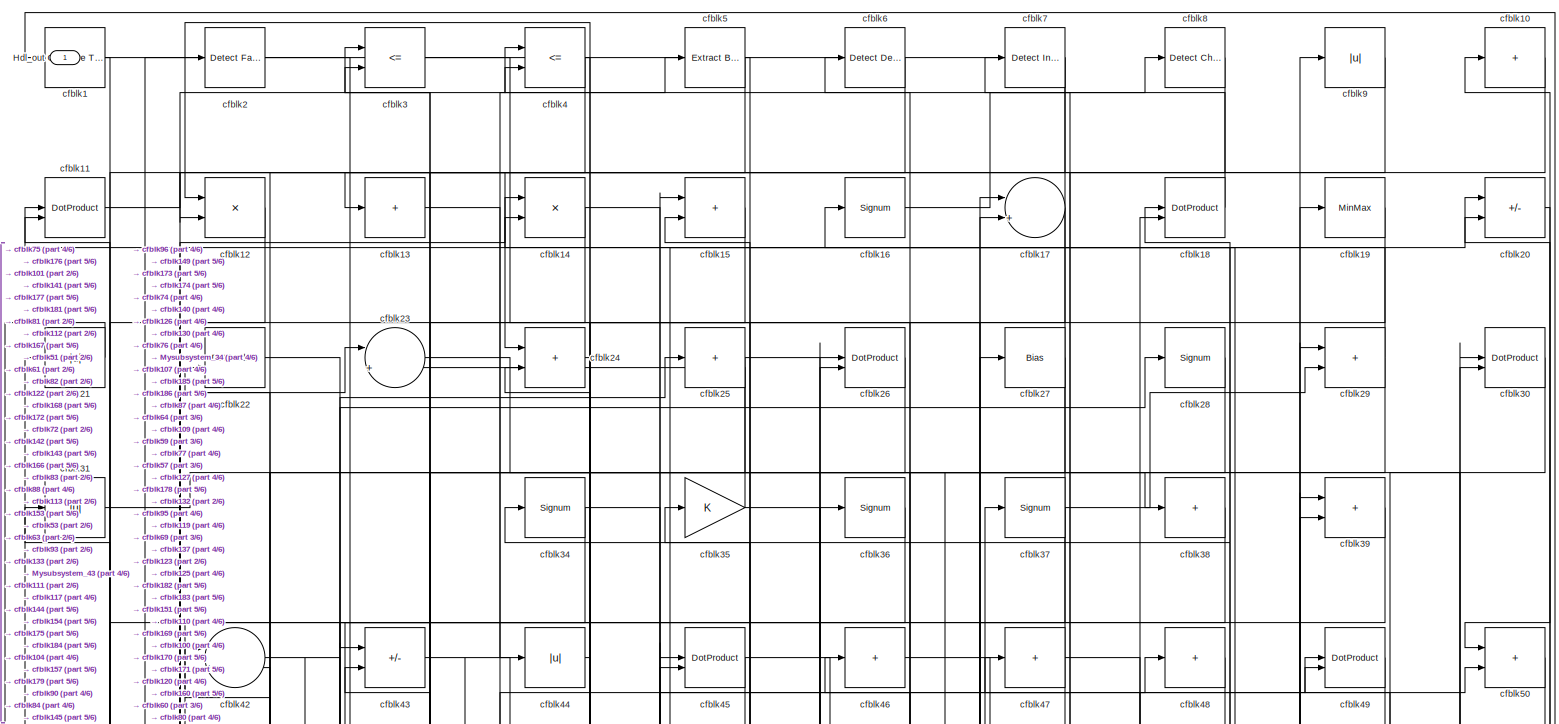
[diagram: root canvas - part 1/6, full width, top band]
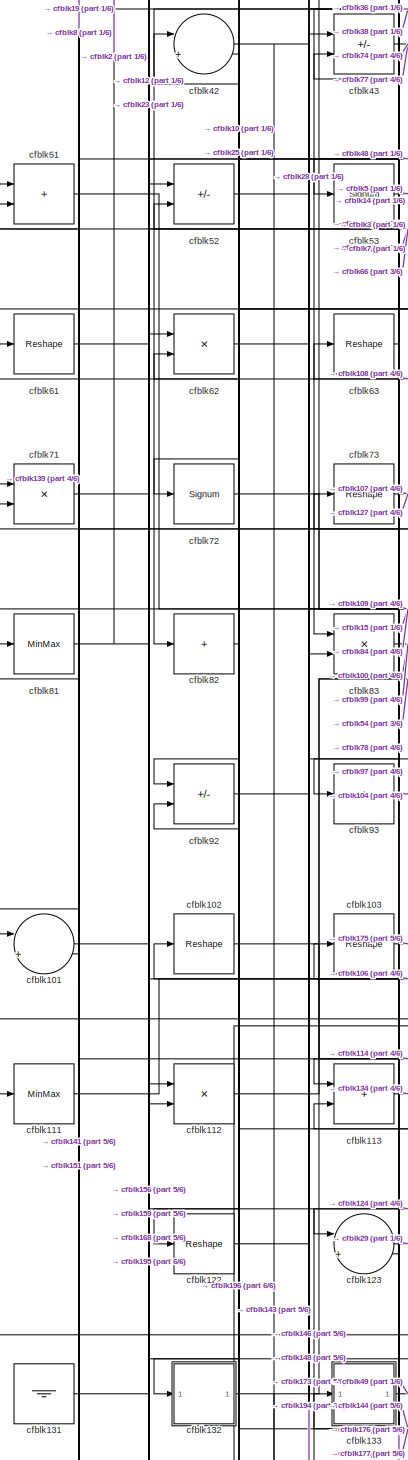
[diagram: root canvas - part 2/6, middle left region]
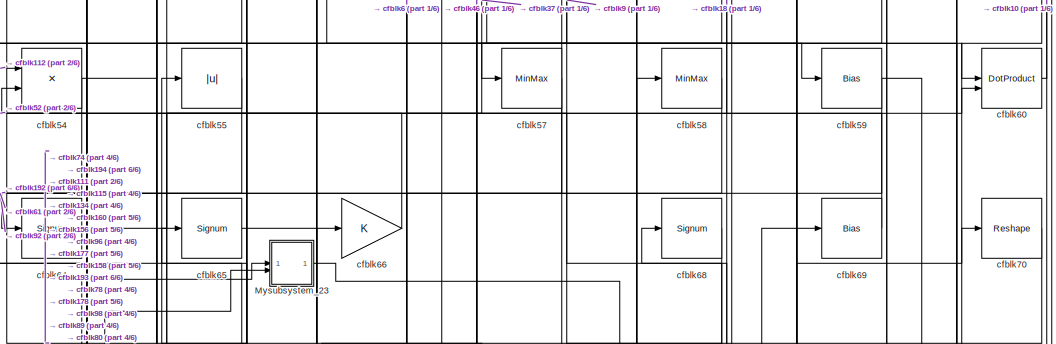
[diagram: root canvas - part 3/6, top center region]
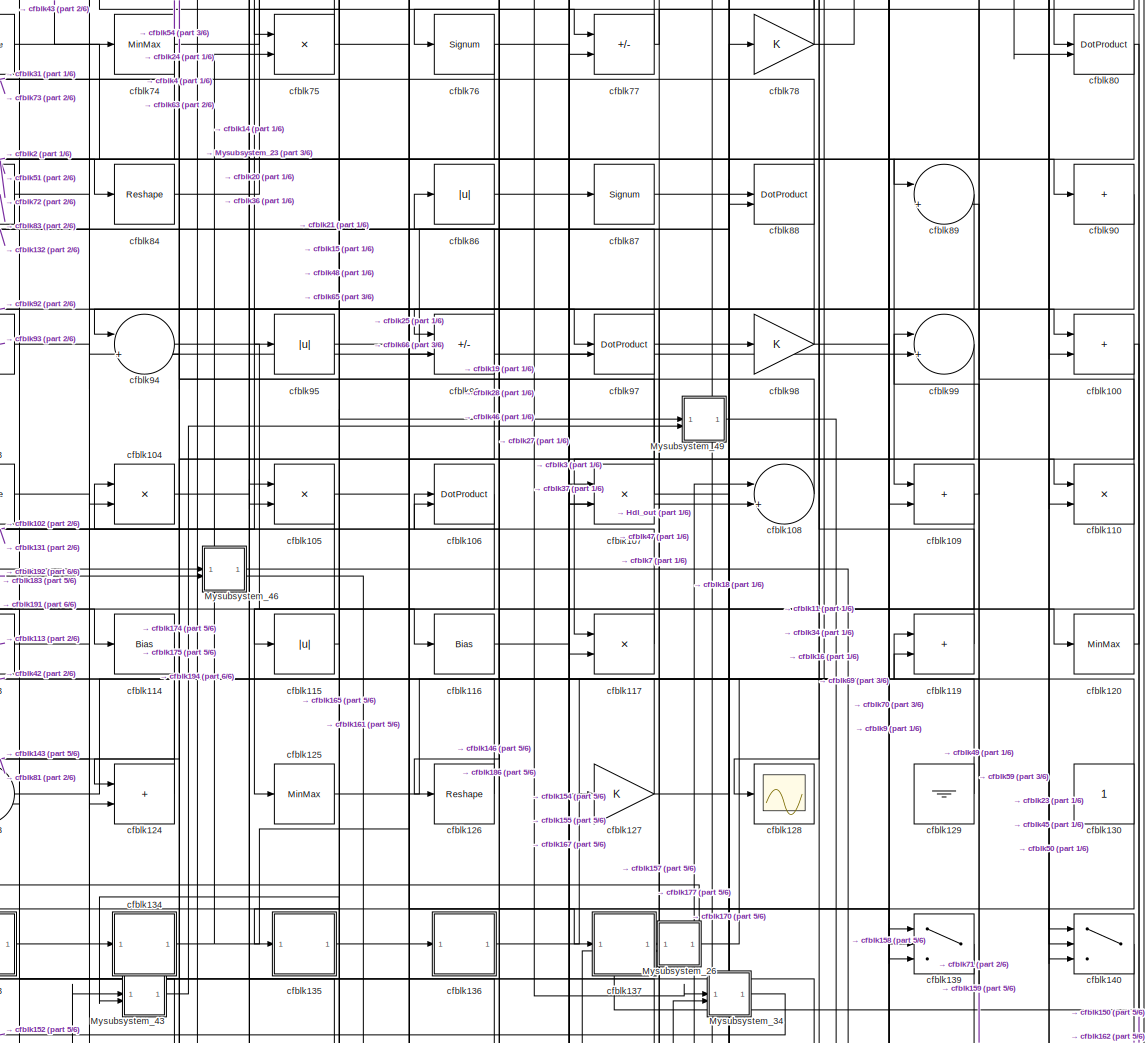
[diagram: root canvas - part 4/6, central region]
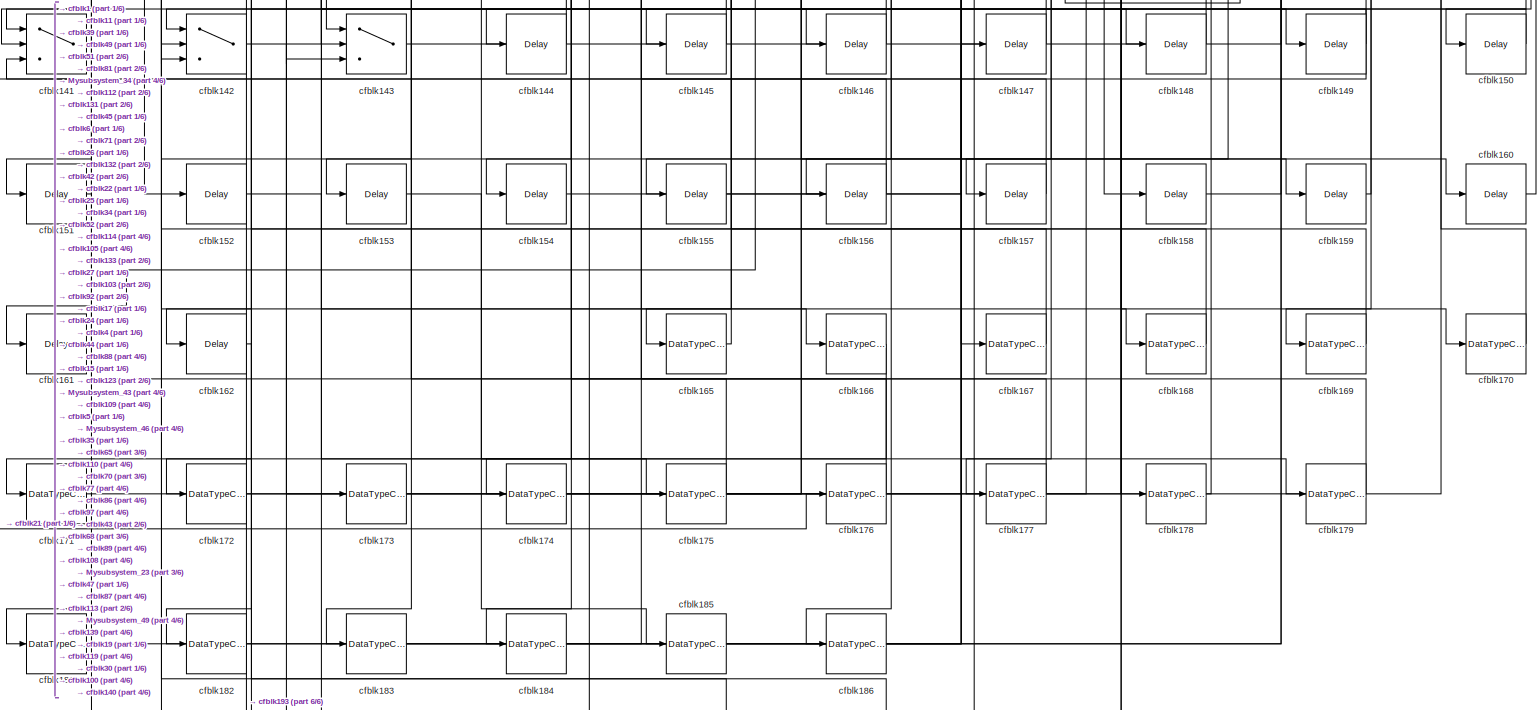
[diagram: root canvas - part 5/6, full width, bottom band]
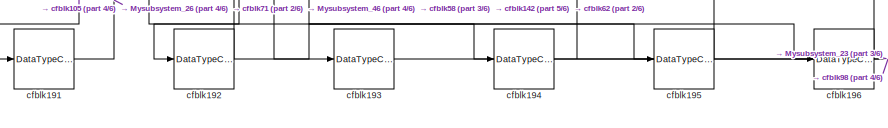
[diagram: root canvas - part 6/6, bottom left region]
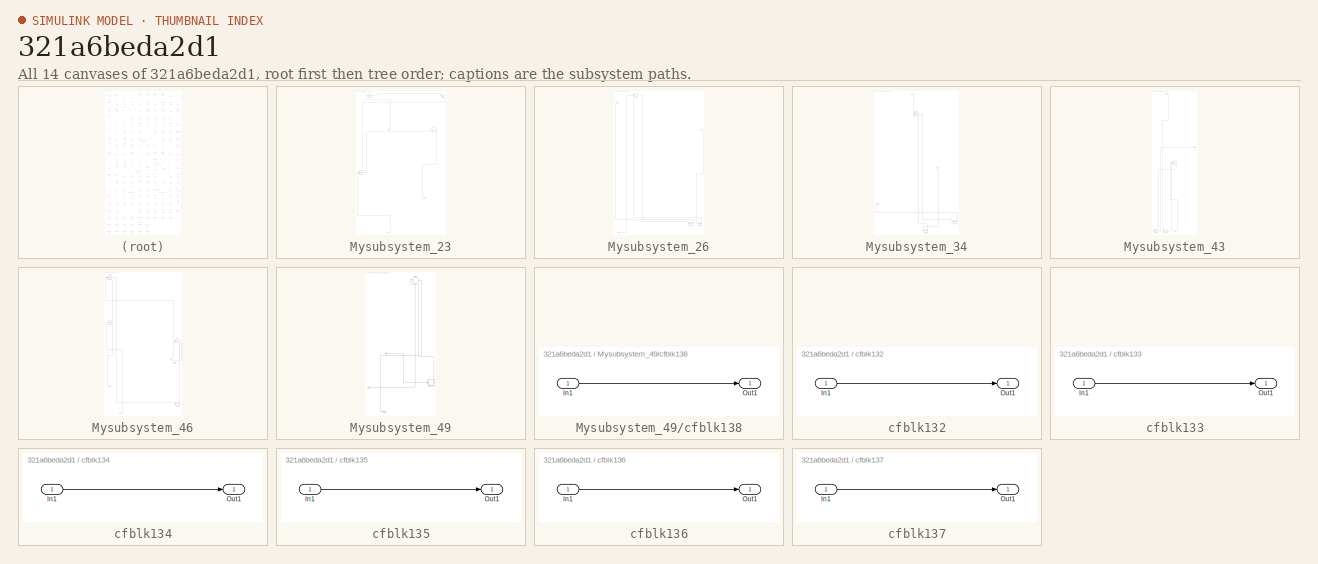
[diagram: thumbnail index - all 14 canvases of the model, root first then tree order]
MODEL slx_321a6beda2d1
KIND model
CONFIG AbsTol = auto
CONFIG EnableMultiTasking = off
CONFIG FixedStep = auto
CONFIG MaxStep = auto
CONFIG MinStep = auto
CONFIG RelTol = 1e-3
CONFIG SampleTimeConstraint = Unconstrained
CONFIG SolverName = VariableStepAuto
CONFIG StartTime = 0.0
CONFIG StopTime = 10.0
BLOCK [Outport] Hdl_out
  OutDataTypeStr = uint8
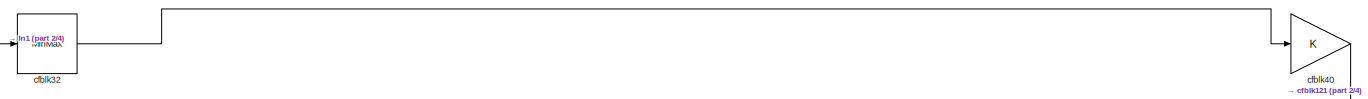
[diagram: Mysubsystem_23 - part 1/4, full width, top band]
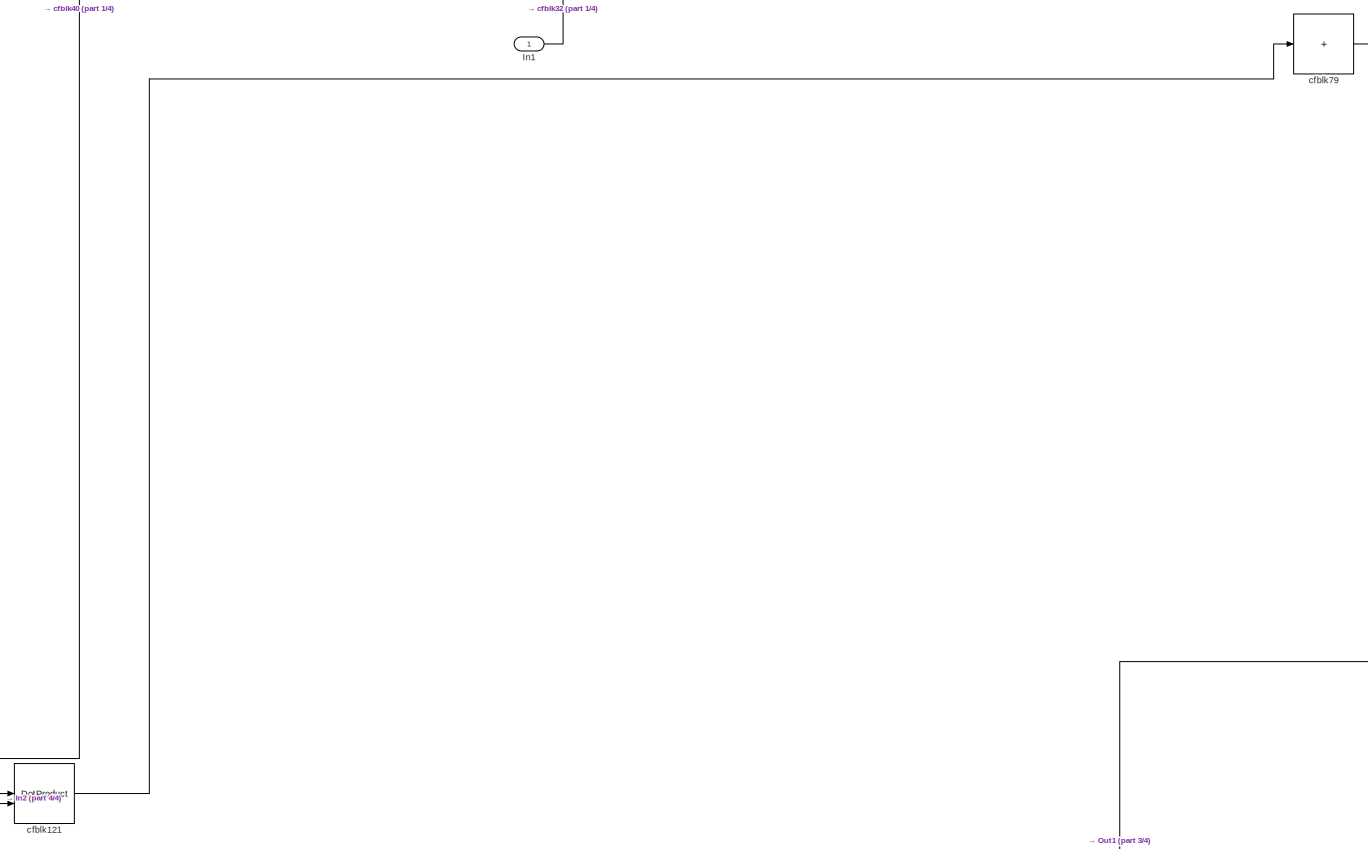
[diagram: Mysubsystem_23 - part 2/4, full width, middle band]
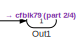
[diagram: Mysubsystem_23 - part 3/4, bottom right region]
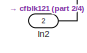
[diagram: Mysubsystem_23 - part 4/4, bottom center region]
BLOCK [SubSystem] Mysubsystem_23
  RTWFcnName = Mysubsystem_23
  RTWFcnNameOpts = User specified
  RTWFileNameOpts = Use function name
  RTWSystemCode = Reusable function
  TreatAsAtomicUnit = on
BLOCK [Inport] Mysubsystem_23/In1
BLOCK [Inport] Mysubsystem_23/In2
  Port = 2
BLOCK [Outport] Mysubsystem_23/Out1
BLOCK [DotProduct] Mysubsystem_23/cfblk121
  OutDataTypeStr = Inherit: Inherit via internal rule
BLOCK [MinMax] Mysubsystem_23/cfblk32
BLOCK [Gain] Mysubsystem_23/cfblk40
BLOCK [Sum] Mysubsystem_23/cfblk79
  IconShape = rectangular
  Inputs = +
BLOCK [SubSystem] Mysubsystem_26
  RTWFcnName = Mysubsystem_26
  RTWFcnNameOpts = User specified
  RTWFileNameOpts = Use function name
  RTWSystemCode = Reusable function
  TreatAsAtomicUnit = on
BLOCK [Inport] Mysubsystem_26/In1
BLOCK [Inport] Mysubsystem_26/In2
  Port = 2
BLOCK [Outport] Mysubsystem_26/Out1
BLOCK [DataTypeConversion] Mysubsystem_26/cfblk189
  OutDataTypeStr = uint8
  RndMeth = Floor
  SaturateOnIntegerOverflow = off
BLOCK [DataTypeConversion] Mysubsystem_26/cfblk190
  OutDataTypeStr = uint8
  RndMeth = Floor
  SaturateOnIntegerOverflow = off
BLOCK [Product] Mysubsystem_26/cfblk33
  Inputs = */
  RndMeth = Zero
  SaturateOnIntegerOverflow = on
BLOCK [SubSystem] Mysubsystem_34
  RTWFcnName = Mysubsystem_34
  RTWFcnNameOpts = User specified
  RTWFileNameOpts = Use function name
  RTWSystemCode = Reusable function
  TreatAsAtomicUnit = on
BLOCK [Inport] Mysubsystem_34/In1
BLOCK [Inport] Mysubsystem_34/In2
  Port = 2
BLOCK [Outport] Mysubsystem_34/Out1
BLOCK [DataTypeConversion] Mysubsystem_34/cfblk180
  OutDataTypeStr = uint8
  RndMeth = Floor
  SaturateOnIntegerOverflow = off
BLOCK [DataTypeConversion] Mysubsystem_34/cfblk187
  OutDataTypeStr = uint8
  RndMeth = Floor
  SaturateOnIntegerOverflow = off
BLOCK [DotProduct] Mysubsystem_34/cfblk56
  OutDataTypeStr = Inherit: Inherit via internal rule
BLOCK [SubSystem] Mysubsystem_43
  RTWFcnName = Mysubsystem_43
  RTWFcnNameOpts = User specified
  RTWFileNameOpts = Use function name
  RTWSystemCode = Reusable function
  TreatAsAtomicUnit = on
BLOCK [Inport] Mysubsystem_43/In1
BLOCK [Inport] Mysubsystem_43/In2
  Port = 2
BLOCK [Outport] Mysubsystem_43/Out1
BLOCK [DataTypeConversion] Mysubsystem_43/cfblk163
  OutDataTypeStr = uint8
  RndMeth = Floor
  SaturateOnIntegerOverflow = off
BLOCK [DataTypeConversion] Mysubsystem_43/cfblk164
  OutDataTypeStr = uint8
  RndMeth = Floor
  SaturateOnIntegerOverflow = off
BLOCK [DotProduct] Mysubsystem_43/cfblk85
  OutDataTypeStr = Inherit: Inherit via internal rule
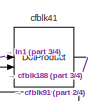
[diagram: Mysubsystem_46 - part 1/4, top left region]
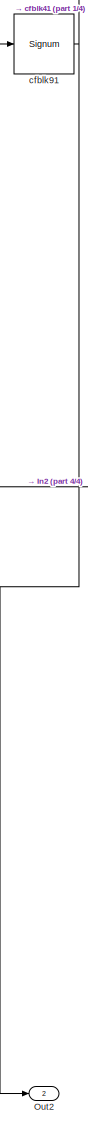
[diagram: Mysubsystem_46 - part 2/4, middle left region]
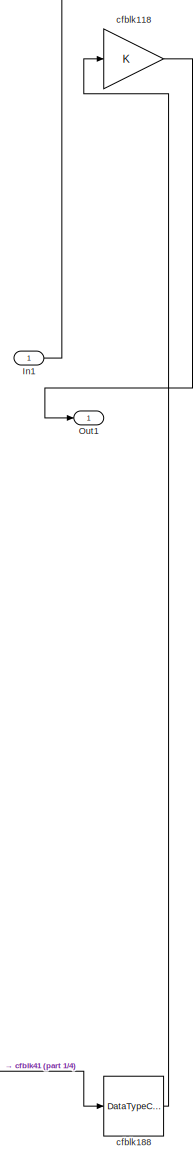
[diagram: Mysubsystem_46 - part 3/4, bottom right region]
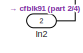
[diagram: Mysubsystem_46 - part 4/4, bottom left region]
BLOCK [SubSystem] Mysubsystem_46
  RTWFcnName = Mysubsystem_46
  RTWFcnNameOpts = User specified
  RTWFileNameOpts = Use function name
  RTWSystemCode = Reusable function
  TreatAsAtomicUnit = on
BLOCK [Inport] Mysubsystem_46/In1
BLOCK [Inport] Mysubsystem_46/In2
  Port = 2
BLOCK [Outport] Mysubsystem_46/Out1
BLOCK [Outport] Mysubsystem_46/Out2
  Port = 2
BLOCK [Gain] Mysubsystem_46/cfblk118
BLOCK [DataTypeConversion] Mysubsystem_46/cfblk188
  OutDataTypeStr = uint8
  RndMeth = Floor
  SaturateOnIntegerOverflow = off
BLOCK [DotProduct] Mysubsystem_46/cfblk41
  OutDataTypeStr = Inherit: Inherit via internal rule
BLOCK [Signum] Mysubsystem_46/cfblk91
BLOCK [SubSystem] Mysubsystem_49
  RTWFcnName = Mysubsystem_49
  RTWFcnNameOpts = User specified
  RTWFileNameOpts = Use function name
  RTWSystemCode = Reusable function
  TreatAsAtomicUnit = on
BLOCK [Inport] Mysubsystem_49/In1
BLOCK [Inport] Mysubsystem_49/In2
  Port = 2
BLOCK [Outport] Mysubsystem_49/Out1
BLOCK [SubSystem] Mysubsystem_49/cfblk138
  LibrarySourceBlock = hdlsllib/Ports &\nSubsystems/Subsystem
BLOCK [Inport] Mysubsystem_49/cfblk138/In1
BLOCK [Outport] Mysubsystem_49/cfblk138/Out1
BLOCK [Sum] Mysubsystem_49/cfblk67
  Inputs = |++
BLOCK [Reference] cfblk1  REF=hdlsllib/Logic and Bit
Operations/Compare
To Constant
  SourceBlock = hdlsllib/Logic and Bit\nOperations/Compare\nTo Constant
  SourceType = Compare To Constant
BLOCK [Sum] cfblk10
  IconShape = rectangular
  Inputs = +
  OutDataTypeStr = uint8
BLOCK [Sum] cfblk100
  IconShape = rectangular
  OutDataTypeStr = uint8
BLOCK [Sum] cfblk101
  Inputs = |++
  OutDataTypeStr = uint8
BLOCK [Reshape] cfblk102
BLOCK [Reshape] cfblk103
BLOCK [Product] cfblk104
  Inputs = */
  OutDataTypeStr = uint8
  RndMeth = Zero
  SaturateOnIntegerOverflow = on
BLOCK [Product] cfblk105
  Inputs = */
  OutDataTypeStr = uint8
  RndMeth = Zero
  SaturateOnIntegerOverflow = on
BLOCK [DotProduct] cfblk106
  OutDataTypeStr = uint8
BLOCK [Product] cfblk107
  Inputs = */
  OutDataTypeStr = uint8
  RndMeth = Zero
  SaturateOnIntegerOverflow = on
BLOCK [Sum] cfblk108
  Inputs = |++
  OutDataTypeStr = uint8
BLOCK [Sum] cfblk109
  IconShape = rectangular
  OutDataTypeStr = uint8
BLOCK [DotProduct] cfblk11
  OutDataTypeStr = uint8
BLOCK [Product] cfblk110
  Inputs = */
  OutDataTypeStr = uint8
  RndMeth = Zero
  SaturateOnIntegerOverflow = on
BLOCK [MinMax] cfblk111
  OutDataTypeStr = uint8
BLOCK [Product] cfblk112
  Inputs = */
  OutDataTypeStr = uint8
  RndMeth = Zero
  SaturateOnIntegerOverflow = on
BLOCK [Sum] cfblk113
  IconShape = rectangular
  OutDataTypeStr = uint8
BLOCK [Bias] cfblk114
  Bias = 0.0
  SaturateOnIntegerOverflow = off
BLOCK [Abs] cfblk115
  OutDataTypeStr = uint8
  SaturateOnIntegerOverflow = off
BLOCK [Bias] cfblk116
  Bias = 0.0
  SaturateOnIntegerOverflow = off
BLOCK [Product] cfblk117
  Inputs = */
  OutDataTypeStr = uint8
  RndMeth = Zero
  SaturateOnIntegerOverflow = on
BLOCK [Sum] cfblk119
  IconShape = rectangular
  OutDataTypeStr = uint8
BLOCK [Product] cfblk12
  Inputs = */
  OutDataTypeStr = uint8
  RndMeth = Zero
  SaturateOnIntegerOverflow = on
BLOCK [MinMax] cfblk120
  OutDataTypeStr = uint8
BLOCK [Reshape] cfblk122
BLOCK [Sum] cfblk123
  Inputs = |++
  OutDataTypeStr = uint8
BLOCK [Sum] cfblk124
  IconShape = rectangular
  OutDataTypeStr = uint8
BLOCK [MinMax] cfblk125
  OutDataTypeStr = uint8
BLOCK [Reshape] cfblk126
BLOCK [Gain] cfblk127
  OutDataTypeStr = uint8
BLOCK [Scope] cfblk128
  Floating = off
  NumInputPorts = 1
  ScopeSpecificationString = Simulink.scopes.TimeScopeBlockCfg('CurrentConfiguration', extmgr.ConfigurationSet(extmgr.Configuration('Core','General UI',true),extmgr.Configuration('Core','Source UI',true),extmgr.Configuration('Sources','WiredSimulink',true,'DataLoggingVariableName','ScopeData2','DataLoggingSaveFormat','Array','DataLoggingLimitDataPoints',true,'DataLoggingDecimation','1'),extmgr.Configuration('Visuals','Time Do...<+868ch>
BLOCK [Ground] cfblk129
BLOCK [Sum] cfblk13
  IconShape = rectangular
  Inputs = +
  OutDataTypeStr = uint8
BLOCK [Constant] cfblk130
  OutDataTypeStr = uint8
  SampleTime = -1
BLOCK [Ground] cfblk131
BLOCK [SubSystem] cfblk132
  LibrarySourceBlock = hdlsllib/Ports &\nSubsystems/Subsystem
BLOCK [Inport] cfblk132/In1
BLOCK [Outport] cfblk132/Out1
BLOCK [SubSystem] cfblk133
  LibrarySourceBlock = hdlsllib/Ports &\nSubsystems/Subsystem
BLOCK [Inport] cfblk133/In1
BLOCK [Outport] cfblk133/Out1
BLOCK [SubSystem] cfblk134
  LibrarySourceBlock = hdlsllib/Ports &\nSubsystems/Subsystem
BLOCK [Inport] cfblk134/In1
BLOCK [Outport] cfblk134/Out1
BLOCK [SubSystem] cfblk135
  LibrarySourceBlock = hdlsllib/Ports &\nSubsystems/Subsystem
BLOCK [Inport] cfblk135/In1
BLOCK [Outport] cfblk135/Out1
BLOCK [SubSystem] cfblk136
  LibrarySourceBlock = hdlsllib/Ports &\nSubsystems/Subsystem
BLOCK [Inport] cfblk136/In1
BLOCK [Outport] cfblk136/Out1
BLOCK [SubSystem] cfblk137
  LibrarySourceBlock = hdlsllib/Ports &\nSubsystems/Subsystem
BLOCK [Inport] cfblk137/In1
BLOCK [Outport] cfblk137/Out1
BLOCK [Switch] cfblk139
  InputSameDT = off
  OutDataTypeStr = uint8
  SaturateOnIntegerOverflow = off
BLOCK [Product] cfblk14
  Inputs = */
  OutDataTypeStr = uint8
  RndMeth = Zero
  SaturateOnIntegerOverflow = on
BLOCK [Switch] cfblk140
  InputSameDT = off
  OutDataTypeStr = uint8
  SaturateOnIntegerOverflow = off
BLOCK [Switch] cfblk141
  InputSameDT = off
  OutDataTypeStr = uint8
  SaturateOnIntegerOverflow = off
BLOCK [Switch] cfblk142
  InputSameDT = off
  OutDataTypeStr = uint8
  SaturateOnIntegerOverflow = off
BLOCK [Switch] cfblk143
  InputSameDT = off
  OutDataTypeStr = uint8
  SaturateOnIntegerOverflow = off
BLOCK [Delay] cfblk144
  InputPortMap = u0
  SampleTime = 1
BLOCK [Delay] cfblk145
  InputPortMap = u0
  SampleTime = 1
BLOCK [Delay] cfblk146
  InputPortMap = u0
  SampleTime = 1
BLOCK [Delay] cfblk147
  InputPortMap = u0
  SampleTime = 1
BLOCK [Delay] cfblk148
  InputPortMap = u0
  SampleTime = 1
BLOCK [Delay] cfblk149
  InputPortMap = u0
  SampleTime = 1
BLOCK [Sum] cfblk15
  IconShape = rectangular
  OutDataTypeStr = uint8
BLOCK [Delay] cfblk150
  InputPortMap = u0
  SampleTime = 1
BLOCK [Delay] cfblk151
  InputPortMap = u0
  SampleTime = 1
BLOCK [Delay] cfblk152
  InputPortMap = u0
  SampleTime = 1
BLOCK [Delay] cfblk153
  InputPortMap = u0
  SampleTime = 1
BLOCK [Delay] cfblk154
  InputPortMap = u0
  SampleTime = 1
BLOCK [Delay] cfblk155
  InputPortMap = u0
  SampleTime = 1
BLOCK [Delay] cfblk156
  InputPortMap = u0
  SampleTime = 1
BLOCK [Delay] cfblk157
  InputPortMap = u0
  SampleTime = 1
BLOCK [Delay] cfblk158
  InputPortMap = u0
  SampleTime = 1
BLOCK [Delay] cfblk159
  InputPortMap = u0
  SampleTime = 1
BLOCK [Signum] cfblk16
BLOCK [Delay] cfblk160
  InputPortMap = u0
  SampleTime = 1
BLOCK [Delay] cfblk161
  InputPortMap = u0
  SampleTime = 1
BLOCK [Delay] cfblk162
  InputPortMap = u0
  SampleTime = 1
BLOCK [DataTypeConversion] cfblk165
  OutDataTypeStr = uint8
  RndMeth = Floor
  SaturateOnIntegerOverflow = off
BLOCK [DataTypeConversion] cfblk166
  OutDataTypeStr = uint8
  RndMeth = Floor
  SaturateOnIntegerOverflow = off
BLOCK [DataTypeConversion] cfblk167
  OutDataTypeStr = uint8
  RndMeth = Floor
  SaturateOnIntegerOverflow = off
BLOCK [DataTypeConversion] cfblk168
  OutDataTypeStr = uint8
  RndMeth = Floor
  SaturateOnIntegerOverflow = off
BLOCK [DataTypeConversion] cfblk169
  OutDataTypeStr = uint8
  RndMeth = Floor
  SaturateOnIntegerOverflow = off
BLOCK [Sum] cfblk17
  Inputs = |++
  OutDataTypeStr = uint8
BLOCK [DataTypeConversion] cfblk170
  OutDataTypeStr = uint8
  RndMeth = Floor
  SaturateOnIntegerOverflow = off
BLOCK [DataTypeConversion] cfblk171
  OutDataTypeStr = uint8
  RndMeth = Floor
  SaturateOnIntegerOverflow = off
BLOCK [DataTypeConversion] cfblk172
  OutDataTypeStr = uint8
  RndMeth = Floor
  SaturateOnIntegerOverflow = off
BLOCK [DataTypeConversion] cfblk173
  OutDataTypeStr = uint8
  RndMeth = Floor
  SaturateOnIntegerOverflow = off
BLOCK [DataTypeConversion] cfblk174
  OutDataTypeStr = uint8
  RndMeth = Floor
  SaturateOnIntegerOverflow = off
BLOCK [DataTypeConversion] cfblk175
  OutDataTypeStr = uint8
  RndMeth = Floor
  SaturateOnIntegerOverflow = off
BLOCK [DataTypeConversion] cfblk176
  OutDataTypeStr = uint8
  RndMeth = Floor
  SaturateOnIntegerOverflow = off
BLOCK [DataTypeConversion] cfblk177
  OutDataTypeStr = uint8
  RndMeth = Floor
  SaturateOnIntegerOverflow = off
BLOCK [DataTypeConversion] cfblk178
  OutDataTypeStr = uint8
  RndMeth = Floor
  SaturateOnIntegerOverflow = off
BLOCK [DataTypeConversion] cfblk179
  OutDataTypeStr = uint8
  RndMeth = Floor
  SaturateOnIntegerOverflow = off
BLOCK [DotProduct] cfblk18
  OutDataTypeStr = uint8
BLOCK [DataTypeConversion] cfblk181
  OutDataTypeStr = uint8
  RndMeth = Floor
  SaturateOnIntegerOverflow = off
BLOCK [DataTypeConversion] cfblk182
  OutDataTypeStr = uint8
  RndMeth = Floor
  SaturateOnIntegerOverflow = off
BLOCK [DataTypeConversion] cfblk183
  OutDataTypeStr = uint8
  RndMeth = Floor
  SaturateOnIntegerOverflow = off
BLOCK [DataTypeConversion] cfblk184
  OutDataTypeStr = uint8
  RndMeth = Floor
  SaturateOnIntegerOverflow = off
BLOCK [DataTypeConversion] cfblk185
  OutDataTypeStr = uint8
  RndMeth = Floor
  SaturateOnIntegerOverflow = off
BLOCK [DataTypeConversion] cfblk186
  OutDataTypeStr = uint8
  RndMeth = Floor
  SaturateOnIntegerOverflow = off
BLOCK [MinMax] cfblk19
  OutDataTypeStr = uint8
BLOCK [DataTypeConversion] cfblk191
  OutDataTypeStr = uint8
  RndMeth = Floor
  SaturateOnIntegerOverflow = off
BLOCK [DataTypeConversion] cfblk192
  OutDataTypeStr = uint8
  RndMeth = Floor
  SaturateOnIntegerOverflow = off
BLOCK [DataTypeConversion] cfblk193
  OutDataTypeStr = uint8
  RndMeth = Floor
  SaturateOnIntegerOverflow = off
BLOCK [DataTypeConversion] cfblk194
  OutDataTypeStr = uint8
  RndMeth = Floor
  SaturateOnIntegerOverflow = off
BLOCK [DataTypeConversion] cfblk195
  OutDataTypeStr = uint8
  RndMeth = Floor
  SaturateOnIntegerOverflow = off
BLOCK [DataTypeConversion] cfblk196
  OutDataTypeStr = uint8
  RndMeth = Floor
  SaturateOnIntegerOverflow = off
BLOCK [Reference] cfblk2  REF=hdlsllib/Logic and Bit
Operations/Detect Fall
Nonpositive
  SourceBlock = hdlsllib/Logic and Bit\nOperations/Detect Fall\nNonpositive
  SourceType = Detect Fall Nonpositive
BLOCK [Sum] cfblk20
  IconShape = rectangular
  Inputs = +-
  OutDataTypeStr = uint8
BLOCK [Abs] cfblk21
  OutDataTypeStr = uint8
  SaturateOnIntegerOverflow = off
BLOCK [DotProduct] cfblk22
  OutDataTypeStr = uint8
BLOCK [Sum] cfblk23
  Inputs = |++
  OutDataTypeStr = uint8
BLOCK [Sum] cfblk24
  IconShape = rectangular
  OutDataTypeStr = uint8
BLOCK [Sum] cfblk25
  IconShape = rectangular
  Inputs = +
  OutDataTypeStr = uint8
BLOCK [DotProduct] cfblk26
  OutDataTypeStr = uint8
BLOCK [Bias] cfblk27
  Bias = 0.0
  SaturateOnIntegerOverflow = off
BLOCK [Signum] cfblk28
BLOCK [Sum] cfblk29
  IconShape = rectangular
  OutDataTypeStr = uint8
BLOCK [RelationalOperator] cfblk3
  InputSameDT = off
  Operator = <=
  OutDataTypeStr = boolean
BLOCK [DotProduct] cfblk30
  OutDataTypeStr = uint8
BLOCK [Abs] cfblk31
  OutDataTypeStr = uint8
  SaturateOnIntegerOverflow = off
BLOCK [Signum] cfblk34
BLOCK [Gain] cfblk35
  OutDataTypeStr = uint8
BLOCK [Signum] cfblk36
BLOCK [Signum] cfblk37
BLOCK [Sum] cfblk38
  IconShape = rectangular
  Inputs = +
  OutDataTypeStr = uint8
BLOCK [Sum] cfblk39
  IconShape = rectangular
  OutDataTypeStr = uint8
BLOCK [RelationalOperator] cfblk4
  InputSameDT = off
  Operator = <=
  OutDataTypeStr = boolean
BLOCK [Sum] cfblk42
  Inputs = |++
  OutDataTypeStr = uint8
BLOCK [Sum] cfblk43
  IconShape = rectangular
  Inputs = +-
  OutDataTypeStr = uint8
BLOCK [Abs] cfblk44
  OutDataTypeStr = uint8
  SaturateOnIntegerOverflow = off
BLOCK [DotProduct] cfblk45
  OutDataTypeStr = uint8
BLOCK [Sum] cfblk46
  IconShape = rectangular
  Inputs = +
  OutDataTypeStr = uint8
BLOCK [Sum] cfblk47
  IconShape = rectangular
  Inputs = +
  OutDataTypeStr = uint8
BLOCK [Sum] cfblk48
  IconShape = rectangular
  Inputs = +
  OutDataTypeStr = uint8
BLOCK [DotProduct] cfblk49
  OutDataTypeStr = uint8
BLOCK [Reference] cfblk5  REF=simulink/Logic and Bit
Operations/Extract Bits
  LibrarySourceBlock = hdlsllib/Logic and Bit\nOperations/Extract Bits
  SourceBlock = simulink/Logic and Bit\nOperations/Extract Bits
  SourceType = Extract Bits
BLOCK [Sum] cfblk50
  IconShape = rectangular
  OutDataTypeStr = uint8
BLOCK [Sum] cfblk51
  IconShape = rectangular
  OutDataTypeStr = uint8
BLOCK [Sum] cfblk52
  IconShape = rectangular
  Inputs = +-
  OutDataTypeStr = uint8
BLOCK [Signum] cfblk53
BLOCK [Product] cfblk54
  Inputs = */
  OutDataTypeStr = uint8
  RndMeth = Zero
  SaturateOnIntegerOverflow = on
BLOCK [Abs] cfblk55
  OutDataTypeStr = uint8
  SaturateOnIntegerOverflow = off
BLOCK [MinMax] cfblk57
  OutDataTypeStr = uint8
BLOCK [MinMax] cfblk58
  OutDataTypeStr = uint8
BLOCK [Bias] cfblk59
  Bias = 0.0
  SaturateOnIntegerOverflow = off
BLOCK [Reference] cfblk6  REF=simulink/Logic and Bit
Operations/Detect
Decrease
  LibrarySourceBlock = hdlsllib/Logic and Bit\nOperations/Detect\nDecrease
  SourceBlock = simulink/Logic and Bit\nOperations/Detect\nDecrease
  SourceType = Detect Decrease
BLOCK [DotProduct] cfblk60
  OutDataTypeStr = uint8
BLOCK [Reshape] cfblk61
BLOCK [Product] cfblk62
  Inputs = */
  OutDataTypeStr = uint8
  RndMeth = Zero
  SaturateOnIntegerOverflow = on
BLOCK [Reshape] cfblk63
BLOCK [Signum] cfblk64
BLOCK [Signum] cfblk65
BLOCK [Gain] cfblk66
  OutDataTypeStr = uint8
BLOCK [Signum] cfblk68
BLOCK [Bias] cfblk69
  Bias = 0.0
  SaturateOnIntegerOverflow = off
BLOCK [Reference] cfblk7  REF=simulink/Logic and Bit
Operations/Detect
Increase
  LibrarySourceBlock = hdlsllib/Logic and Bit\nOperations/Detect\nIncrease
  SourceBlock = simulink/Logic and Bit\nOperations/Detect\nIncrease
  SourceType = Detect Increase
BLOCK [Reshape] cfblk70
BLOCK [Product] cfblk71
  Inputs = */
  OutDataTypeStr = uint8
  RndMeth = Zero
  SaturateOnIntegerOverflow = on
BLOCK [Signum] cfblk72
BLOCK [Reshape] cfblk73
BLOCK [MinMax] cfblk74
  OutDataTypeStr = uint8
BLOCK [Product] cfblk75
  Inputs = */
  OutDataTypeStr = uint8
  RndMeth = Zero
  SaturateOnIntegerOverflow = on
BLOCK [Signum] cfblk76
BLOCK [Sum] cfblk77
  IconShape = rectangular
  Inputs = +-
  OutDataTypeStr = uint8
BLOCK [Gain] cfblk78
  OutDataTypeStr = uint8
BLOCK [Reference] cfblk8  REF=simulink/Logic and Bit
Operations/Detect
Change
  LibrarySourceBlock = hdlsllib/Logic and Bit\nOperations/Detect\nChange
  SourceBlock = simulink/Logic and Bit\nOperations/Detect\nChange
  SourceType = Detect Change
BLOCK [DotProduct] cfblk80
  OutDataTypeStr = uint8
BLOCK [MinMax] cfblk81
  OutDataTypeStr = uint8
BLOCK [Sum] cfblk82
  IconShape = rectangular
  Inputs = +
  OutDataTypeStr = uint8
BLOCK [Product] cfblk83
  Inputs = */
  OutDataTypeStr = uint8
  RndMeth = Zero
  SaturateOnIntegerOverflow = on
BLOCK [Reshape] cfblk84
BLOCK [Abs] cfblk86
  OutDataTypeStr = uint8
  SaturateOnIntegerOverflow = off
BLOCK [Signum] cfblk87
BLOCK [DotProduct] cfblk88
  OutDataTypeStr = uint8
BLOCK [Sum] cfblk89
  Inputs = |++
  OutDataTypeStr = uint8
BLOCK [Abs] cfblk9
  OutDataTypeStr = uint8
  SaturateOnIntegerOverflow = off
BLOCK [Sum] cfblk90
  IconShape = rectangular
  Inputs = +
  OutDataTypeStr = uint8
BLOCK [Sum] cfblk92
  IconShape = rectangular
  Inputs = +-
  OutDataTypeStr = uint8
BLOCK [Sum] cfblk93
  IconShape = rectangular
  Inputs = +
  OutDataTypeStr = uint8
BLOCK [Sum] cfblk94
  Inputs = |++
  OutDataTypeStr = uint8
BLOCK [Abs] cfblk95
  OutDataTypeStr = uint8
  SaturateOnIntegerOverflow = off
BLOCK [Sum] cfblk96
  IconShape = rectangular
  Inputs = +-
  OutDataTypeStr = uint8
BLOCK [DotProduct] cfblk97
  OutDataTypeStr = uint8
BLOCK [Gain] cfblk98
  OutDataTypeStr = uint8
BLOCK [Sum] cfblk99
  Inputs = |++
  OutDataTypeStr = uint8
LINE Mysubsystem_23/In1:1 -> Mysubsystem_23/cfblk32:1
LINE Mysubsystem_23/In2:1 -> Mysubsystem_23/cfblk121:2
LINE Mysubsystem_23/cfblk121:1 -> Mysubsystem_23/cfblk79:1
LINE Mysubsystem_23/cfblk32:1 -> Mysubsystem_23/cfblk40:1
LINE Mysubsystem_23/cfblk40:1 -> Mysubsystem_23/cfblk121:1
LINE Mysubsystem_23/cfblk79:1 -> Mysubsystem_23/Out1:1
LINE Mysubsystem_23:1 -> cfblk158:1
LINE Mysubsystem_26/In1:1 -> Mysubsystem_26/cfblk190:1
LINE Mysubsystem_26/In2:1 -> Mysubsystem_26/cfblk33:2
LINE Mysubsystem_26/cfblk189:1 -> Mysubsystem_26/Out1:1
LINE Mysubsystem_26/cfblk190:1 -> Mysubsystem_26/cfblk33:1
LINE Mysubsystem_26/cfblk33:1 -> Mysubsystem_26/cfblk189:1
LINE Mysubsystem_26:1 -> Mysubsystem_46:1
LINE Mysubsystem_34/In1:1 -> Mysubsystem_34/cfblk56:1
LINE Mysubsystem_34/In2:1 -> Mysubsystem_34/cfblk187:1
LINE Mysubsystem_34/cfblk180:1 -> Mysubsystem_34/Out1:1
LINE Mysubsystem_34/cfblk187:1 -> Mysubsystem_34/cfblk56:2
LINE Mysubsystem_34/cfblk56:1 -> Mysubsystem_34/cfblk180:1
LINE Mysubsystem_34:1 -> cfblk152:1
LINE Mysubsystem_43/In1:1 -> Mysubsystem_43/cfblk164:1
LINE Mysubsystem_43/In2:1 -> Mysubsystem_43/cfblk85:2
LINE Mysubsystem_43/cfblk163:1 -> Mysubsystem_43/Out1:1
LINE Mysubsystem_43/cfblk164:1 -> Mysubsystem_43/cfblk85:1
LINE Mysubsystem_43/cfblk85:1 -> Mysubsystem_43/cfblk163:1
LINE Mysubsystem_43:1 -> Mysubsystem_49:2
LINE Mysubsystem_46/In1:1 -> Mysubsystem_46/cfblk41:1
LINE Mysubsystem_46/In2:1 -> Mysubsystem_46/cfblk91:1
LINE Mysubsystem_46/cfblk118:1 -> Mysubsystem_46/Out1:1
LINE Mysubsystem_46/cfblk188:1 -> Mysubsystem_46/cfblk118:1
LINE Mysubsystem_46/cfblk41:1 -> Mysubsystem_46/cfblk188:1
NET Mysubsystem_46/cfblk91:1 -> Mysubsystem_46/Out2:1, Mysubsystem_46/cfblk41:2
LINE Mysubsystem_46:1 -> Mysubsystem_34:2
LINE Mysubsystem_46:2 -> cfblk161:1
LINE Mysubsystem_49/In1:1 -> Mysubsystem_49/cfblk138:1
LINE Mysubsystem_49/In2:1 -> Mysubsystem_49/cfblk67:2
LINE Mysubsystem_49/cfblk138/In1:1 -> Mysubsystem_49/cfblk138/Out1:1
LINE Mysubsystem_49/cfblk138:1 -> Mysubsystem_49/cfblk67:1
LINE Mysubsystem_49/cfblk67:1 -> Mysubsystem_49/Out1:1
LINE Mysubsystem_49:1 -> cfblk155:1
NET cfblk100:1 -> cfblk110:2, cfblk150:1
LINE cfblk101:1 -> cfblk52:1
LINE cfblk102:1 -> cfblk114:1
LINE cfblk103:1 -> cfblk175:1
LINE cfblk104:1 -> cfblk48:1
NET cfblk105:1 -> cfblk110:1, cfblk183:1, cfblk191:1
LINE cfblk106:1 -> cfblk125:1
NET cfblk107:1 -> cfblk140:2, cfblk71:2
LINE cfblk108:1 -> cfblk63:1
NET cfblk109:1 -> cfblk135:1, cfblk165:1, cfblk89:2
LINE cfblk10:1 -> cfblk72:1
NET cfblk110:1 -> cfblk186:1, cfblk49:2
NET cfblk111:1 -> cfblk55:1, cfblk60:2
LINE cfblk112:1 -> cfblk54:1
LINE cfblk113:1 -> cfblk134:1
LINE cfblk114:1 -> cfblk143:1
NET cfblk115:1 -> Mysubsystem_49:1, cfblk65:1
LINE cfblk116:1 -> cfblk108:2
LINE cfblk117:1 -> cfblk24:2
NET cfblk119:1 -> cfblk11:1, cfblk34:1
LINE cfblk11:1 -> cfblk4:1
LINE cfblk120:1 -> cfblk20:2
NET cfblk122:1 -> cfblk28:1, cfblk43:1
LINE cfblk123:1 -> cfblk29:1
LINE cfblk124:1 -> cfblk42:1
LINE cfblk125:1 -> cfblk9:1
LINE cfblk126:1 -> cfblk3:2
NET cfblk127:1 -> cfblk50:2, cfblk86:1
LINE cfblk129:1 -> cfblk104:1
LINE cfblk12:1 -> cfblk112:2
NET cfblk130:1 -> cfblk106:2, cfblk140:3, cfblk46:1, cfblk99:1
NET cfblk131:1 -> cfblk106:1, cfblk168:1
LINE cfblk132/In1:1 -> cfblk132/Out1:1
NET cfblk132:1 -> cfblk143:3, cfblk78:1
LINE cfblk133/In1:1 -> cfblk133/Out1:1
LINE cfblk133:1 -> cfblk49:1
LINE cfblk134/In1:1 -> cfblk134/Out1:1
NET cfblk134:1 -> cfblk66:1, cfblk75:2
LINE cfblk135/In1:1 -> cfblk135/Out1:1
LINE cfblk135:1 -> cfblk136:1
LINE cfblk136/In1:1 -> cfblk136/Out1:1
LINE cfblk136:1 -> cfblk119:1
LINE cfblk137/In1:1 -> cfblk137/Out1:1
LINE cfblk137:1 -> cfblk16:1
LINE cfblk139:1 -> cfblk71:1
LINE cfblk13:1 -> cfblk44:1
LINE cfblk140:1 -> cfblk162:1
LINE cfblk141:1 -> cfblk81:1
NET cfblk142:1 -> cfblk193:1, cfblk25:1
LINE cfblk143:1 -> cfblk19:1
LINE cfblk144:1 -> cfblk92:2
LINE cfblk145:1 -> cfblk123:2
LINE cfblk146:1 -> cfblk105:1
LINE cfblk147:1 -> cfblk43:2
LINE cfblk148:1 -> cfblk113:2
LINE cfblk149:1 -> cfblk142:1
NET cfblk14:1 -> cfblk113:1, cfblk90:1
LINE cfblk150:1 -> cfblk141:2
LINE cfblk151:1 -> cfblk51:2
LINE cfblk152:1 -> cfblk179:1
LINE cfblk153:1 -> cfblk185:1
LINE cfblk154:1 -> cfblk77:2
LINE cfblk155:1 -> cfblk97:2
LINE cfblk156:1 -> cfblk112:1
LINE cfblk157:1 -> cfblk15:1
LINE cfblk158:1 -> cfblk139:1
LINE cfblk159:1 -> cfblk119:2
LINE cfblk15:1 -> cfblk111:1
LINE cfblk160:1 -> cfblk1:1
LINE cfblk161:1 -> cfblk141:3
LINE cfblk162:1 -> cfblk182:1
LINE cfblk165:1 -> Mysubsystem_43:2
LINE cfblk166:1 -> cfblk171:1
LINE cfblk167:1 -> cfblk22:1
LINE cfblk168:1 -> cfblk22:2
LINE cfblk169:1 -> cfblk35:1
LINE cfblk16:1 -> cfblk8:1
LINE cfblk170:1 -> cfblk30:1
LINE cfblk171:1 -> cfblk30:2
LINE cfblk172:1 -> cfblk147:1
LINE cfblk173:1 -> cfblk26:1
LINE cfblk174:1 -> cfblk26:2
NET cfblk175:1 -> cfblk4:2, cfblk88:1
LINE cfblk176:1 -> cfblk103:1
NET cfblk177:1 -> cfblk108:1, cfblk11:2, cfblk133:1
LINE cfblk178:1 -> cfblk68:1
LINE cfblk179:1 -> cfblk45:1
LINE cfblk17:1 -> cfblk184:1
LINE cfblk181:1 -> cfblk45:2
LINE cfblk182:1 -> cfblk39:1
LINE cfblk183:1 -> cfblk39:2
LINE cfblk184:1 -> cfblk27:1
LINE cfblk185:1 -> cfblk17:1
LINE cfblk186:1 -> cfblk17:2
LINE cfblk18:1 -> cfblk12:1
LINE cfblk191:1 -> Mysubsystem_26:2
NET cfblk192:1 -> Mysubsystem_46:2, cfblk196:1
LINE cfblk193:1 -> cfblk58:1
NET cfblk194:1 -> Mysubsystem_23:2, cfblk98:1
LINE cfblk195:1 -> cfblk62:1
LINE cfblk196:1 -> cfblk62:2
NET cfblk19:1 -> cfblk101:2, cfblk75:1, cfblk76:1
LINE cfblk1:1 -> cfblk141:1
LINE cfblk20:1 -> cfblk50:1
LINE cfblk21:1 -> cfblk176:1
LINE cfblk22:1 -> cfblk166:1
LINE cfblk23:1 -> cfblk100:2
LINE cfblk24:1 -> cfblk144:1
NET cfblk25:1 -> cfblk122:1, cfblk137:1
LINE cfblk26:1 -> cfblk172:1
NET cfblk27:1 -> Mysubsystem_34:1, cfblk153:1
LINE cfblk28:1 -> cfblk126:1
NET cfblk29:1 -> cfblk14:2, cfblk93:1
LINE cfblk2:1 -> cfblk88:2
LINE cfblk30:1 -> cfblk169:1
LINE cfblk31:1 -> cfblk38:1
NET cfblk34:1 -> cfblk143:2, cfblk96:2
NET cfblk35:1 -> cfblk149:1, cfblk23:2
LINE cfblk36:1 -> cfblk83:1
NET cfblk37:1 -> cfblk107:2, cfblk29:2
LINE cfblk38:1 -> cfblk82:1
LINE cfblk39:1 -> cfblk181:1
LINE cfblk3:1 -> cfblk87:1
NET cfblk42:1 -> cfblk148:1, cfblk173:1
NET cfblk43:1 -> cfblk74:1, cfblk77:1
LINE cfblk44:1 -> cfblk154:1
NET cfblk45:1 -> cfblk140:1, cfblk142:2
NET cfblk46:1 -> cfblk109:2, cfblk59:1
LINE cfblk47:1 -> cfblk178:1
NET cfblk48:1 -> cfblk132:1, cfblk95:1
LINE cfblk49:1 -> cfblk151:1
NET cfblk4:1 -> Mysubsystem_43:1, cfblk13:1, cfblk24:1
LINE cfblk50:1 -> cfblk80:1
NET cfblk51:1 -> cfblk109:1, cfblk23:1
LINE cfblk52:1 -> cfblk146:1
LINE cfblk53:1 -> cfblk5:1
NET cfblk54:1 -> cfblk60:1, cfblk61:1
LINE cfblk55:1 -> cfblk92:1
LINE cfblk57:1 -> cfblk64:1
LINE cfblk58:1 -> cfblk192:1
NET cfblk59:1 -> cfblk80:2, cfblk96:1
NET cfblk5:1 -> cfblk12:2, cfblk145:1
LINE cfblk60:1 -> cfblk10:1
LINE cfblk61:1 -> cfblk14:1
LINE cfblk62:1 -> cfblk194:1
LINE cfblk63:1 -> cfblk3:1
LINE cfblk64:1 -> cfblk37:1
LINE cfblk65:1 -> cfblk160:1
LINE cfblk66:1 -> cfblk52:2
LINE cfblk68:1 -> cfblk177:1
NET cfblk69:1 -> cfblk18:1, cfblk6:1
LINE cfblk6:1 -> cfblk142:3
NET cfblk70:1 -> cfblk156:1, cfblk89:1
NET cfblk71:1 -> cfblk159:1, cfblk195:1
LINE cfblk72:1 -> cfblk84:1
NET cfblk73:1 -> cfblk107:1, cfblk127:1
NET cfblk74:1 -> Mysubsystem_23:1, cfblk36:1, cfblk54:2, cfblk83:2
NET cfblk75:1 -> cfblk139:3, cfblk21:1
NET cfblk76:1 -> cfblk105:2, cfblk117:2
NET cfblk77:1 -> Hdl_out:1, cfblk47:1, cfblk7:1
NET cfblk78:1 -> cfblk51:1, cfblk69:1
LINE cfblk7:1 -> cfblk53:1
NET cfblk80:1 -> Mysubsystem_26:1, cfblk115:1
NET cfblk81:1 -> cfblk123:1, cfblk124:2, cfblk139:2, cfblk2:1
LINE cfblk82:1 -> cfblk42:2
NET cfblk83:1 -> cfblk100:1, cfblk99:2
LINE cfblk84:1 -> cfblk20:1
LINE cfblk86:1 -> cfblk167:1
LINE cfblk87:1 -> cfblk170:1
NET cfblk88:1 -> cfblk174:1, cfblk31:1, cfblk94:2
LINE cfblk89:1 -> cfblk157:1
LINE cfblk8:1 -> cfblk101:1
LINE cfblk90:1 -> cfblk128:1
LINE cfblk92:1 -> cfblk97:1
LINE cfblk93:1 -> cfblk104:2
LINE cfblk94:1 -> cfblk116:1
LINE cfblk95:1 -> cfblk18:2
NET cfblk96:1 -> cfblk124:1, cfblk15:2
NET cfblk97:1 -> cfblk102:1, cfblk120:1, cfblk73:1
NET cfblk98:1 -> cfblk70:1, cfblk94:1
LINE cfblk99:1 -> cfblk117:1
LINE cfblk9:1 -> cfblk57:1
note: NET lines group one-source signal fan-out (src -> all destinations, sorted); 1:1 wires keep LINE
